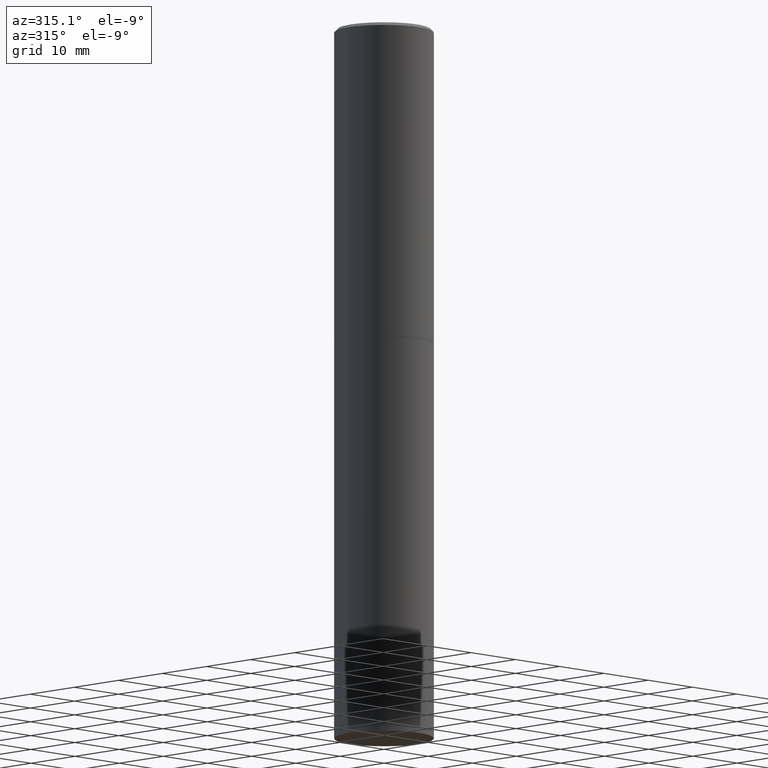
[diagram: clean part render]
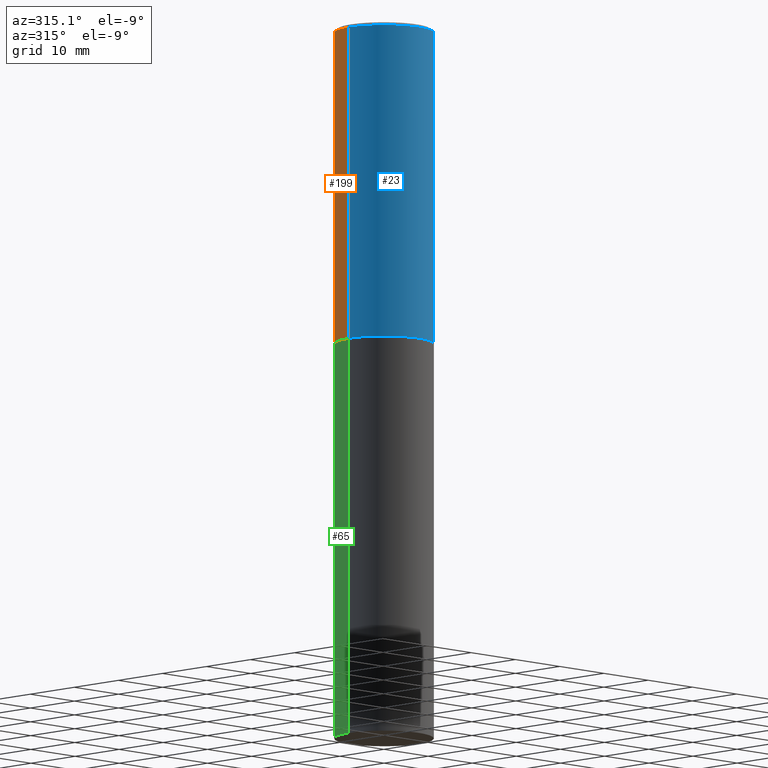
[diagram: same view with three faces highlighted in distinct colors, each labeled with its STEP entity id]
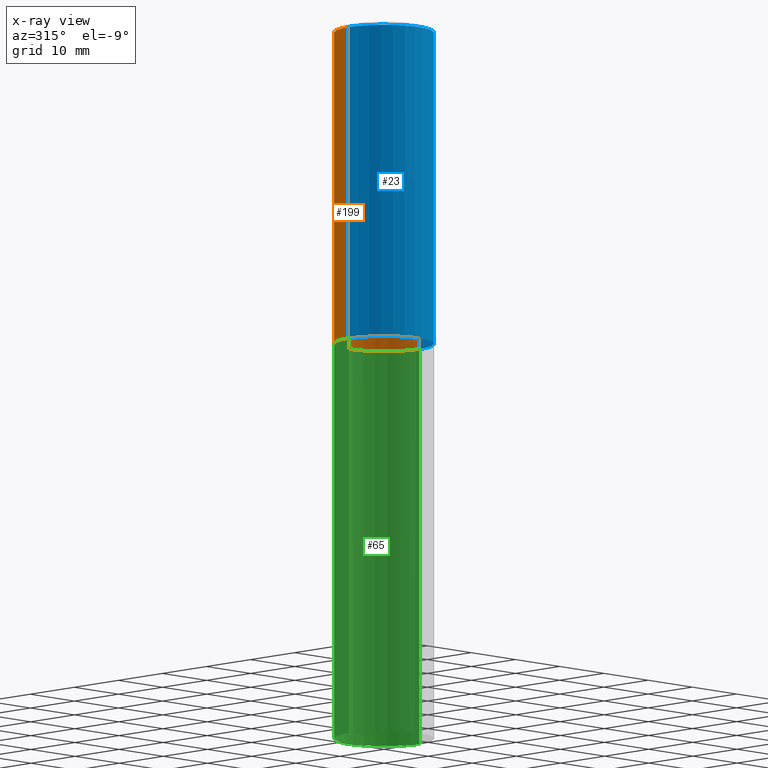
[diagram: x-ray of the same camera — body ghosted, the three highlighted faces saturated]
A machine part, auxiliary view with three faces highlighted in distinct colors.
The next image is the same camera in x-ray (body ghosted, the three faces saturated) — at least one of them is partly hidden behind the body in this view.
Their STEP definitions:

[orange] entity #199 — the highlighted cylindrical surface (partial cylindrical patch) has radius 7.9997 mm, axis along (-0, 0, 1).
#9 = VERTEX_POINT ( 'NONE', #72 ) ;
#18 = ORIENTED_EDGE ( 'NONE', *, *, #85, .T. ) ;
#20 = CIRCLE ( 'NONE', #31, 0.3149500000000000077 ) ;
#21 = CARTESIAN_POINT ( 'NONE',  ( 0.3149499999999997857, -2.230543471175005872E-15, -0.02000000000000006981 ) ) ;
#31 = AXIS2_PLACEMENT_3D ( 'NONE', #331, #325, #109 ) ;
#55 = DIRECTION ( 'NONE',  ( 1.000000000000000000, -6.982962677686265922E-15, 4.876176775795935232E-29 ) ) ;
#58 = DIRECTION ( 'NONE',  ( 1.000000000000000000, -6.982962677686266711E-15, 0.000000000000000000 ) ) ;
#64 = ORIENTED_EDGE ( 'NONE', *, *, #316, .F. ) ;
#72 = CARTESIAN_POINT ( 'NONE',  ( 0.3149500000000000077, -9.206337994261596208E-15, -2.006899999999999462 ) ) ;
#85 = EDGE_CURVE ( 'NONE', #290, #314, #271, .T. ) ;
#87 = CARTESIAN_POINT ( 'NONE',  ( -0.3149499999999997857, 2.129454468560425389E-15, -0.02000000000000006981 ) ) ;
#89 = LINE ( 'NONE', #338, #206 ) ;
#106 = DIRECTION ( 'NONE',  ( -2.445468806185136877E-29, 3.491481338843145188E-15, 1.000000000000000000 ) ) ;
#109 = DIRECTION ( 'NONE',  ( 1.000000000000000000, -6.982962677686266711E-15, 0.000000000000000000 ) ) ;
#116 = DIRECTION ( 'NONE',  ( -2.445468806185136597E-29, 3.491481338843145583E-15, 1.000000000000000000 ) ) ;
#125 = EDGE_LOOP ( 'NONE', ( #261, #18, #129, #64 ) ) ;
#129 = ORIENTED_EDGE ( 'NONE', *, *, #355, .F. ) ;
#134 = FACE_OUTER_BOUND ( 'NONE', #125, .T. ) ;
#136 = EDGE_CURVE ( 'NONE', #9, #290, #20, .T. ) ;
#137 = CARTESIAN_POINT ( 'NONE',  ( -0.3149499999999998967, 2.237854346276434801E-15, -1.549218606675782116E-29 ) ) ;
#148 = CIRCLE ( 'NONE', #354, 0.3149499999999997857 ) ;
#161 = CARTESIAN_POINT ( 'NONE',  ( 0.000000000000000000, 0.000000000000000000, 0.000000000000000000 ) ) ;
#168 = CARTESIAN_POINT ( 'NONE',  ( 4.890937612370289799E-31, -6.982962677686315028E-17, -0.02000000000000006981 ) ) ;
#169 = VERTEX_POINT ( 'NONE', #21 ) ;
#199 = ADVANCED_FACE ( 'NONE', ( #134 ), #242, .T. ) ;
#206 = VECTOR ( 'NONE', #303, 39.37007874015748143 ) ;
#242 = CYLINDRICAL_SURFACE ( 'NONE', #284, 0.3149499999999998967 ) ;
#249 = DIRECTION ( 'NONE',  ( -2.445468806185136597E-29, 3.491481338843145583E-15, 1.000000000000000000 ) ) ;
#252 = CARTESIAN_POINT ( 'NONE',  ( -0.3149500000000000077, -1.300587416574147649E-15, -2.006899999999999462 ) ) ;
#261 = ORIENTED_EDGE ( 'NONE', *, *, #136, .T. ) ;
#271 = LINE ( 'NONE', #137, #335 ) ;
#284 = AXIS2_PLACEMENT_3D ( 'NONE', #161, #249, #55 ) ;
#290 = VERTEX_POINT ( 'NONE', #252 ) ;
#303 = DIRECTION ( 'NONE',  ( -2.445468806185136877E-29, 3.491481338843145188E-15, 1.000000000000000000 ) ) ;
#314 = VERTEX_POINT ( 'NONE', #87 ) ;
#316 = EDGE_CURVE ( 'NONE', #9, #169, #89, .T. ) ;
#325 = DIRECTION ( 'NONE',  ( -2.445468806185136597E-29, 3.491481338843145583E-15, 1.000000000000000000 ) ) ;
#331 = CARTESIAN_POINT ( 'NONE',  ( 4.907811347132949146E-29, -7.007053898924306337E-15, -2.006899999999999462 ) ) ;
#335 = VECTOR ( 'NONE', #106, 39.37007874015748143 ) ;
#338 = CARTESIAN_POINT ( 'NONE',  ( 0.3149499999999998967, -2.199284095337288688E-15, 1.535751875536929289E-29 ) ) ;
#354 = AXIS2_PLACEMENT_3D ( 'NONE', #168, #116, #58 ) ;
#355 = EDGE_CURVE ( 'NONE', #169, #314, #148, .T. ) ;

[blue] entity #23 — the highlighted cylindrical surface (partial cylindrical patch) has radius 7.9997 mm, axis along (-0, 0, 1).
#9 = VERTEX_POINT ( 'NONE', #72 ) ;
#11 = DIRECTION ( 'NONE',  ( 1.000000000000000000, -6.982962677686265922E-15, 4.876176775795935232E-29 ) ) ;
#21 = CARTESIAN_POINT ( 'NONE',  ( 0.3149499999999997857, -2.230543471175005872E-15, -0.02000000000000006981 ) ) ;
#23 = ADVANCED_FACE ( 'NONE', ( #240 ), #285, .T. ) ;
#50 = CIRCLE ( 'NONE', #312, 0.3149499999999997857 ) ;
#56 = CARTESIAN_POINT ( 'NONE',  ( 4.890937612370289799E-31, -6.982962677686315028E-17, -0.02000000000000006981 ) ) ;
#57 = CIRCLE ( 'NONE', #79, 0.3149500000000000077 ) ;
#72 = CARTESIAN_POINT ( 'NONE',  ( 0.3149500000000000077, -9.206337994261596208E-15, -2.006899999999999462 ) ) ;
#79 = AXIS2_PLACEMENT_3D ( 'NONE', #167, #299, #327 ) ;
#81 = DIRECTION ( 'NONE',  ( 1.000000000000000000, -6.982962677686266711E-15, 0.000000000000000000 ) ) ;
#85 = EDGE_CURVE ( 'NONE', #290, #314, #271, .T. ) ;
#87 = CARTESIAN_POINT ( 'NONE',  ( -0.3149499999999997857, 2.129454468560425389E-15, -0.02000000000000006981 ) ) ;
#89 = LINE ( 'NONE', #338, #206 ) ;
#100 = ORIENTED_EDGE ( 'NONE', *, *, #316, .T. ) ;
#106 = DIRECTION ( 'NONE',  ( -2.445468806185136877E-29, 3.491481338843145188E-15, 1.000000000000000000 ) ) ;
#112 = DIRECTION ( 'NONE',  ( -2.445468806185136597E-29, 3.491481338843145583E-15, 1.000000000000000000 ) ) ;
#123 = EDGE_CURVE ( 'NONE', #314, #169, #50, .T. ) ;
#133 = AXIS2_PLACEMENT_3D ( 'NONE', #149, #260, #11 ) ;
#137 = CARTESIAN_POINT ( 'NONE',  ( -0.3149499999999998967, 2.237854346276434801E-15, -1.549218606675782116E-29 ) ) ;
#149 = CARTESIAN_POINT ( 'NONE',  ( 0.000000000000000000, 0.000000000000000000, 0.000000000000000000 ) ) ;
#167 = CARTESIAN_POINT ( 'NONE',  ( 4.907811347132949146E-29, -7.007053898924306337E-15, -2.006899999999999462 ) ) ;
#169 = VERTEX_POINT ( 'NONE', #21 ) ;
#181 = EDGE_LOOP ( 'NONE', ( #322, #356, #100, #289 ) ) ;
#184 = EDGE_CURVE ( 'NONE', #290, #9, #57, .T. ) ;
#206 = VECTOR ( 'NONE', #303, 39.37007874015748143 ) ;
#240 = FACE_OUTER_BOUND ( 'NONE', #181, .T. ) ;
#252 = CARTESIAN_POINT ( 'NONE',  ( -0.3149500000000000077, -1.300587416574147649E-15, -2.006899999999999462 ) ) ;
#260 = DIRECTION ( 'NONE',  ( -2.445468806185136597E-29, 3.491481338843145583E-15, 1.000000000000000000 ) ) ;
#271 = LINE ( 'NONE', #137, #335 ) ;
#285 = CYLINDRICAL_SURFACE ( 'NONE', #133, 0.3149499999999998967 ) ;
#289 = ORIENTED_EDGE ( 'NONE', *, *, #123, .F. ) ;
#290 = VERTEX_POINT ( 'NONE', #252 ) ;
#299 = DIRECTION ( 'NONE',  ( -2.445468806185136597E-29, 3.491481338843145583E-15, 1.000000000000000000 ) ) ;
#303 = DIRECTION ( 'NONE',  ( -2.445468806185136877E-29, 3.491481338843145188E-15, 1.000000000000000000 ) ) ;
#312 = AXIS2_PLACEMENT_3D ( 'NONE', #56, #112, #81 ) ;
#314 = VERTEX_POINT ( 'NONE', #87 ) ;
#316 = EDGE_CURVE ( 'NONE', #9, #169, #89, .T. ) ;
#322 = ORIENTED_EDGE ( 'NONE', *, *, #85, .F. ) ;
#327 = DIRECTION ( 'NONE',  ( 1.000000000000000000, -6.982962677686266711E-15, 0.000000000000000000 ) ) ;
#335 = VECTOR ( 'NONE', #106, 39.37007874015748143 ) ;
#338 = CARTESIAN_POINT ( 'NONE',  ( 0.3149499999999998967, -2.199284095337288688E-15, 1.535751875536929289E-29 ) ) ;
#356 = ORIENTED_EDGE ( 'NONE', *, *, #184, .T. ) ;

[green] entity #65 — the highlighted cylindrical surface (partial cylindrical patch) has radius 7.9997 mm, axis along (-0, 0, 1).
#25 = DIRECTION ( 'NONE',  ( -2.445468806185136597E-29, 3.491481338843145583E-15, 1.000000000000000000 ) ) ;
#39 = EDGE_CURVE ( 'NONE', #350, #183, #246, .T. ) ;
#49 = CARTESIAN_POINT ( 'NONE',  ( 0.000000000000000000, 0.000000000000000000, 0.000000000000000000 ) ) ;
#52 = CARTESIAN_POINT ( 'NONE',  ( 1.107210456688382298E-28, -1.580803090974622389E-14, -4.527599999999999625 ) ) ;
#62 = CIRCLE ( 'NONE', #362, 0.3149500000000000077 ) ;
#65 = ADVANCED_FACE ( 'NONE', ( #272 ), #139, .T. ) ;
#76 = DIRECTION ( 'NONE',  ( -2.445468806185136597E-29, 3.491481338843145583E-15, 1.000000000000000000 ) ) ;
#83 = DIRECTION ( 'NONE',  ( 1.000000000000000000, -6.982962677686269866E-15, 0.000000000000000000 ) ) ;
#92 = VECTOR ( 'NONE', #165, 39.37007874015748143 ) ;
#105 = LINE ( 'NONE', #363, #92 ) ;
#121 = CARTESIAN_POINT ( 'NONE',  ( 0.3149500000000000077, -1.800731500508351534E-14, -4.527599999999999625 ) ) ;
#128 = VERTEX_POINT ( 'NONE', #186 ) ;
#139 = CYLINDRICAL_SURFACE ( 'NONE', #220, 0.3149500000000000077 ) ;
#152 = ORIENTED_EDGE ( 'NONE', *, *, #212, .F. ) ;
#156 = EDGE_CURVE ( 'NONE', #207, #128, #62, .T. ) ;
#157 = DIRECTION ( 'NONE',  ( 1.000000000000000000, -6.982962677686266711E-15, 4.876176775795936353E-29 ) ) ;
#158 = AXIS2_PLACEMENT_3D ( 'NONE', #52, #76, #163 ) ;
#163 = DIRECTION ( 'NONE',  ( 1.000000000000000000, -6.982962677686269866E-15, 0.000000000000000000 ) ) ;
#164 = EDGE_CURVE ( 'NONE', #183, #128, #296, .T. ) ;
#165 = DIRECTION ( 'NONE',  ( -2.445468806185136877E-29, 3.491481338843145188E-15, 1.000000000000000000 ) ) ;
#183 = VERTEX_POINT ( 'NONE', #190 ) ;
#186 = CARTESIAN_POINT ( 'NONE',  ( -0.3149500000000000077, -9.171433798728249845E-15, -2.007899999999999352 ) ) ;
#190 = CARTESIAN_POINT ( 'NONE',  ( -0.3149500000000000077, -9.171433798728249845E-15, -4.527599999999999625 ) ) ;
#201 = VECTOR ( 'NONE', #219, 39.37007874015748143 ) ;
#207 = VERTEX_POINT ( 'NONE', #298 ) ;
#212 = EDGE_CURVE ( 'NONE', #350, #207, #105, .T. ) ;
#213 = EDGE_LOOP ( 'NONE', ( #264, #344, #256, #152 ) ) ;
#219 = DIRECTION ( 'NONE',  ( -2.445468806185136877E-29, 3.491481338843145188E-15, 1.000000000000000000 ) ) ;
#220 = AXIS2_PLACEMENT_3D ( 'NONE', #49, #25, #157 ) ;
#245 = CARTESIAN_POINT ( 'NONE',  ( 4.910256815939134188E-29, -7.010545380263150133E-15, -2.007899999999999352 ) ) ;
#246 = CIRCLE ( 'NONE', #158, 0.3149500000000000077 ) ;
#248 = DIRECTION ( 'NONE',  ( -2.445468806185136597E-29, 3.491481338843145583E-15, 1.000000000000000000 ) ) ;
#256 = ORIENTED_EDGE ( 'NONE', *, *, #156, .F. ) ;
#264 = ORIENTED_EDGE ( 'NONE', *, *, #39, .T. ) ;
#272 = FACE_OUTER_BOUND ( 'NONE', #213, .T. ) ;
#296 = LINE ( 'NONE', #360, #201 ) ;
#298 = CARTESIAN_POINT ( 'NONE',  ( 0.3149500000000000077, -9.209829475600440793E-15, -2.007899999999999352 ) ) ;
#344 = ORIENTED_EDGE ( 'NONE', *, *, #164, .T. ) ;
#350 = VERTEX_POINT ( 'NONE', #121 ) ;
#360 = CARTESIAN_POINT ( 'NONE',  ( -0.3149500000000000077, 2.237854346276435590E-15, -1.549218606675782676E-29 ) ) ;
#362 = AXIS2_PLACEMENT_3D ( 'NONE', #245, #248, #83 ) ;
#363 = CARTESIAN_POINT ( 'NONE',  ( 0.3149500000000000077, -2.199284095337289871E-15, 1.535751875536930130E-29 ) ) ;